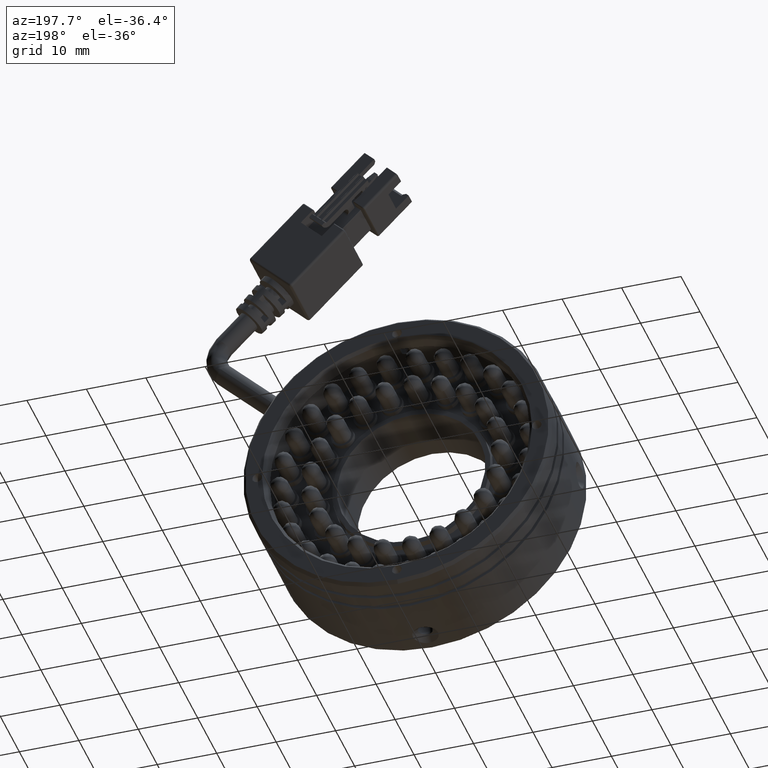
[diagram: clean part render]
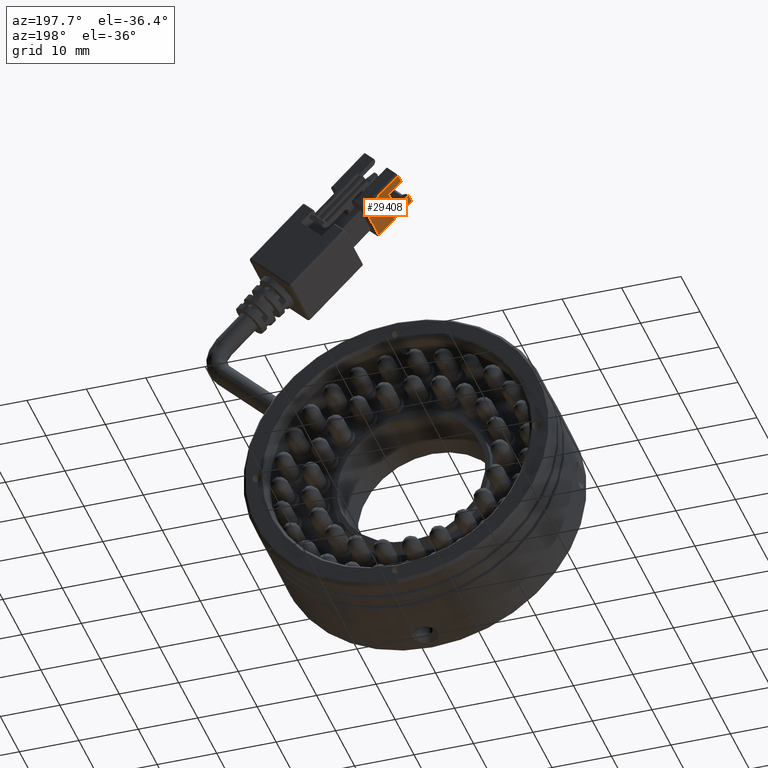
[diagram: same view with one face highlighted and labeled with its STEP entity id]
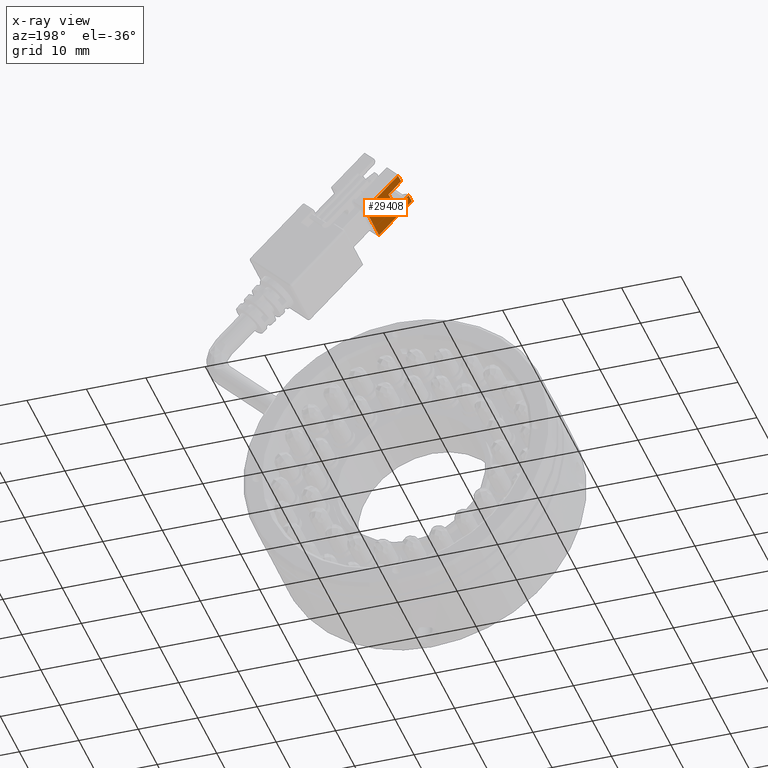
[diagram: x-ray of the same camera — body ghosted, the highlighted face saturated]
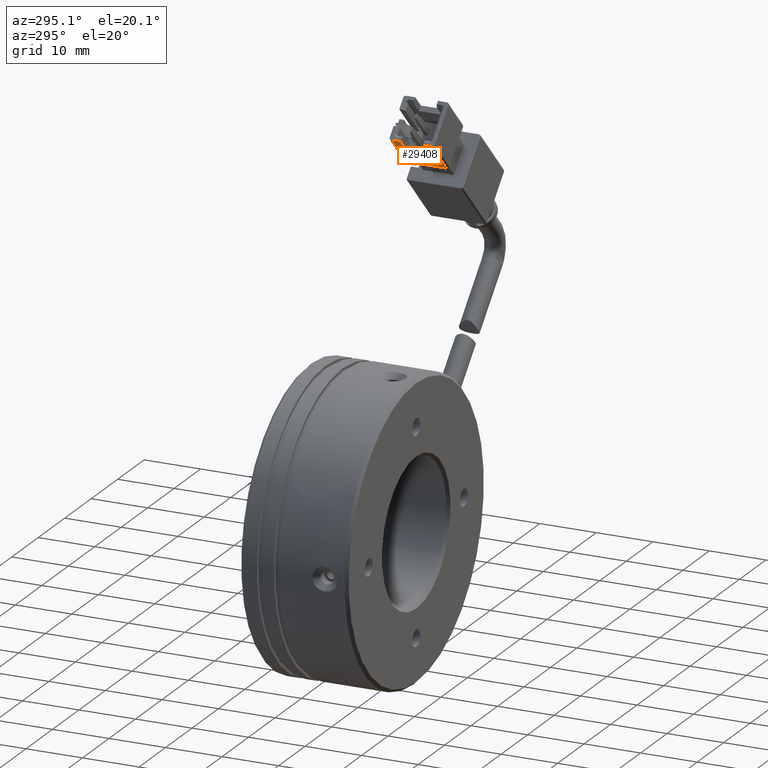
[diagram: same view with one face highlighted and labeled with its STEP entity id]
A machine part, auxiliary view. The second image highlights one B-rep face of the part: STEP entity #29408.
The next image is the same camera in x-ray: the body ghosted, the highlighted face saturated — about 0% of this face is hidden behind the body in this view.
A second angle (auxiliary view) of the same face is appended — the face is thin or edge-on in the first view.
In plain terms, the highlighted planar face has unit normal (0.7071, 0, 0.7071).
Its self-contained STEP definition (entity closure, byte-faithful):
#1387 = EDGE_CURVE ( 'NONE', #6310, #21483, #35288, .T. ) ;
#1725 = DIRECTION ( 'NONE',  ( 0.7071067811865495700, 4.078560488377888700E-017, -0.7071067811865454600 ) ) ;
#1838 = VECTOR ( 'NONE', #37308, 1000.000000000000200 ) ;
#2059 = VECTOR ( 'NONE', #1725, 1000.000000000000200 ) ;
#2305 = ORIENTED_EDGE ( 'NONE', *, *, #30109, .F. ) ;
#3522 = CARTESIAN_POINT ( 'NONE',  ( 5.167171163340100300, -7.369923829761823700, 62.57895013500945700 ) ) ;
#3559 = LINE ( 'NONE', #26369, #11258 ) ;
#4017 = DIRECTION ( 'NONE',  ( -2.839798023242279500E-016, 1.000000000000000000, -2.263002467479990200E-016 ) ) ;
#6111 = DIRECTION ( 'NONE',  ( 2.839798023242279500E-016, -1.000000000000000000, 2.263002467479990200E-016 ) ) ;
#6310 = VERTEX_POINT ( 'NONE', #15023 ) ;
#6462 = VECTOR ( 'NONE', #6111, 1000.000000000000000 ) ;
#7303 = VERTEX_POINT ( 'NONE', #44759 ) ;
#7407 = LINE ( 'NONE', #3522, #17446 ) ;
#8213 = DIRECTION ( 'NONE',  ( 0.7071067811865495700, 4.078560488377888700E-017, -0.7071067811865454600 ) ) ;
#9459 = CARTESIAN_POINT ( 'NONE',  ( 3.045850819780451200, -6.969923829761823300, 64.70027047856909500 ) ) ;
#10043 = DIRECTION ( 'NONE',  ( 0.7071067811865454600, 3.608224830031757800E-016, 0.7071067811865495700 ) ) ;
#11013 = LINE ( 'NONE', #40386, #39869 ) ;
#11258 = VECTOR ( 'NONE', #4017, 1000.000000000000000 ) ;
#12161 = ORIENTED_EDGE ( 'NONE', *, *, #22022, .F. ) ;
#13404 = DIRECTION ( 'NONE',  ( 2.839798023242279500E-016, -1.000000000000000000, 2.263002467479990200E-016 ) ) ;
#13875 = ORIENTED_EDGE ( 'NONE', *, *, #18498, .F. ) ;
#14116 = VECTOR ( 'NONE', #13404, 1000.000000000000000 ) ;
#15023 = CARTESIAN_POINT ( 'NONE',  ( 3.045850819780451200, 0.2300761702381773600, 64.70027047856909500 ) ) ;
#15393 = CARTESIAN_POINT ( 'NONE',  ( 3.045850819780451200, -7.369923829761823700, 64.70027047856909500 ) ) ;
#17446 = VECTOR ( 'NONE', #26044, 1000.000000000000000 ) ;
#18498 = EDGE_CURVE ( 'NONE', #36199, #31530, #11013, .T. ) ;
#19483 = EDGE_CURVE ( 'NONE', #31586, #48245, #32068, .T. ) ;
#21483 = VERTEX_POINT ( 'NONE', #47549 ) ;
#21656 = EDGE_CURVE ( 'NONE', #45592, #6310, #31852, .T. ) ;
#22022 = EDGE_CURVE ( 'NONE', #31530, #31586, #36502, .T. ) ;
#23435 = EDGE_CURVE ( 'NONE', #7303, #36199, #7407, .T. ) ;
#25145 = CARTESIAN_POINT ( 'NONE',  ( 8.561283713035543000, -6.969923829761822500, 59.18483758531402800 ) ) ;
#26044 = DIRECTION ( 'NONE',  ( 2.839798023242279500E-016, -1.000000000000000000, 2.263002467479990200E-016 ) ) ;
#26369 = CARTESIAN_POINT ( 'NONE',  ( 8.561283713035546600, -7.369923829761823700, 59.18483758531402800 ) ) ;
#27609 = EDGE_CURVE ( 'NONE', #21483, #7303, #31027, .T. ) ;
#27649 = EDGE_LOOP ( 'NONE', ( #2305, #47905, #12161, #13875, #35965, #32327, #37461, #33288 ) ) ;
#28477 = CARTESIAN_POINT ( 'NONE',  ( 3.045850819780451200, -7.369923829761823700, 64.70027047856909500 ) ) ;
#29408 = ADVANCED_FACE ( 'NONE', ( #43779 ), #43690, .F. ) ;
#30109 = EDGE_CURVE ( 'NONE', #48245, #45592, #3559, .T. ) ;
#31027 = LINE ( 'NONE', #42192, #39947 ) ;
#31530 = VERTEX_POINT ( 'NONE', #48059 ) ;
#31586 = VERTEX_POINT ( 'NONE', #37150 ) ;
#31852 = LINE ( 'NONE', #33495, #1838 ) ;
#32068 = LINE ( 'NONE', #9459, #2059 ) ;
#32327 = ORIENTED_EDGE ( 'NONE', *, *, #27609, .F. ) ;
#32552 = CARTESIAN_POINT ( 'NONE',  ( 3.045850819780451200, -7.369923829761823700, 64.70027047856909500 ) ) ;
#33288 = ORIENTED_EDGE ( 'NONE', *, *, #21656, .F. ) ;
#33495 = CARTESIAN_POINT ( 'NONE',  ( 3.045850819780451200, 0.2300761702381773600, 64.70027047856909500 ) ) ;
#35288 = LINE ( 'NONE', #15393, #14116 ) ;
#35965 = ORIENTED_EDGE ( 'NONE', *, *, #23435, .F. ) ;
#36199 = VERTEX_POINT ( 'NONE', #45611 ) ;
#36365 = DIRECTION ( 'NONE',  ( -2.839798023242279500E-016, 1.000000000000000000, -2.263002467479990200E-016 ) ) ;
#36502 = LINE ( 'NONE', #28477, #6462 ) ;
#37150 = CARTESIAN_POINT ( 'NONE',  ( 3.045850819780451200, -6.969923829761823300, 64.70027047856909500 ) ) ;
#37308 = DIRECTION ( 'NONE',  ( -0.7071067811865495700, -4.078560488377888700E-017, 0.7071067811865454600 ) ) ;
#37461 = ORIENTED_EDGE ( 'NONE', *, *, #1387, .F. ) ;
#39624 = CARTESIAN_POINT ( 'NONE',  ( 8.561283713035539500, 0.2300761702381773600, 59.18483758531402800 ) ) ;
#39869 = VECTOR ( 'NONE', #44175, 1000.000000000000200 ) ;
#39947 = VECTOR ( 'NONE', #8213, 1000.000000000000200 ) ;
#40386 = CARTESIAN_POINT ( 'NONE',  ( 3.045850819780451200, -5.369923829761823700, 64.70027047856909500 ) ) ;
#42192 = CARTESIAN_POINT ( 'NONE',  ( 3.045850819780451200, -1.369923829761823500, 64.70027047856909500 ) ) ;
#43690 = PLANE ( 'NONE',  #48103 ) ;
#43779 = FACE_OUTER_BOUND ( 'NONE', #27649, .T. ) ;
#44175 = DIRECTION ( 'NONE',  ( -0.7071067811865495700, -4.078560488377888700E-017, 0.7071067811865454600 ) ) ;
#44759 = CARTESIAN_POINT ( 'NONE',  ( 5.167171163340100300, -1.369923829761823500, 62.57895013500945700 ) ) ;
#45592 = VERTEX_POINT ( 'NONE', #39624 ) ;
#45611 = CARTESIAN_POINT ( 'NONE',  ( 5.167171163340100300, -5.369923829761823700, 62.57895013500945700 ) ) ;
#47549 = CARTESIAN_POINT ( 'NONE',  ( 3.045850819780451200, -1.369923829761823500, 64.70027047856909500 ) ) ;
#47905 = ORIENTED_EDGE ( 'NONE', *, *, #19483, .F. ) ;
#48059 = CARTESIAN_POINT ( 'NONE',  ( 3.045850819780451200, -5.369923829761823700, 64.70027047856909500 ) ) ;
#48103 = AXIS2_PLACEMENT_3D ( 'NONE', #32552, #10043, #36365 ) ;
#48245 = VERTEX_POINT ( 'NONE', #25145 ) ;